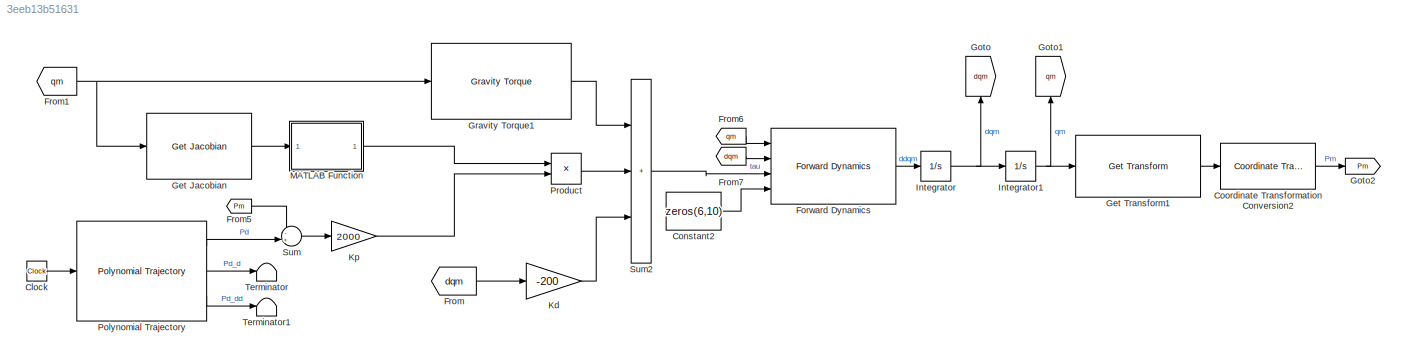
MODEL slx_3eeb13b51631
KIND model
CONFIG AbsTol = auto
CONFIG EnableMultiTasking = off
CONFIG FixedStep = auto
CONFIG MaxStep = auto
CONFIG MinStep = auto
CONFIG RelTol = 1e-3
CONFIG SampleTimeConstraint = Unconstrained
CONFIG SolverName = VariableStepAuto
CONFIG StartTime = 0.0
CONFIG StopTime = 20
BLOCK [Clock] Clock
BLOCK [Constant] Constant2
  Value = zeros(6,10)
BLOCK [Reference] Coordinate Transformation Conversion2  REF=robotcorelib/Coordinate Transformation Conversion
  Ports = [1, 1]
  SourceBlock = robotcorelib/Coordinate Transformation Conversion
  SourceProductBaseCode = NV,RO,RR,UV
  SourceType = robotics.slcore.internal.block.CoordinateTransformationConversion
BLOCK [Reference] Forward Dynamics  REF=robotmaniplib/Forward Dynamics
  Ports = [4, 1]
  SourceBlock = robotmaniplib/Forward Dynamics
  SourceProductBaseCode = RO
  SourceType = Forward Dynamics
BLOCK [From] From
  GotoTag = dqm
BLOCK [From] From1
  GotoTag = qm
BLOCK [From] From5
  GotoTag = Pm
BLOCK [From] From6
  GotoTag = qm
BLOCK [From] From7
  GotoTag = dqm
BLOCK [Reference] Get Jacobian  REF=robotmaniplib/Get Jacobian
  Ports = [1, 1]
  SourceBlock = robotmaniplib/Get Jacobian
  SourceProductBaseCode = RO
  SourceType = Get Jacobian
BLOCK [Reference] Get Transform1  REF=robotmaniplib/Get Transform
  Ports = [1, 1]
  SourceBlock = robotmaniplib/Get Transform
  SourceProductBaseCode = RO
  SourceType = Get Transform
BLOCK [Goto] Goto
  GotoTag = dqm
  NameLocation = right
BLOCK [Goto] Goto1
  GotoTag = qm
  NameLocation = right
BLOCK [Goto] Goto2
  GotoTag = Pm
BLOCK [Reference] Gravity Torque1  REF=robotmaniplib/Gravity Torque
  Ports = [1, 1]
  SourceBlock = robotmaniplib/Gravity Torque
  SourceProductBaseCode = RO
  SourceType = Gravity Torque
BLOCK [Integrator] Integrator
  Ports = [1, 1]
BLOCK [Integrator] Integrator1
  Ports = [1, 1]
BLOCK [Gain] Kd
  Gain = -200
BLOCK [Gain] Kp
  Gain = 2000
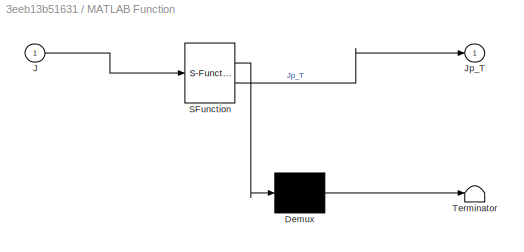
BLOCK [SubSystem] MATLAB Function
  ErrorFcn = Stateflow.Translate.translate
  PermitHierarchicalResolution = ExplicitOnly
  Ports = [1, 1]
  RequestExecContextInheritance = off
  SFBlockType = MATLAB Function
  TreatAsAtomicUnit = on
BLOCK [Demux] MATLAB Function/ Demux 
  Outputs = 1
  Ports = [1, 1]
BLOCK [S-Function] MATLAB Function/ SFunction 
  EnableBusSupport = on
  FunctionName = sf_sfun
  PortCounts = [1 2]
  Ports = [1, 2]
  SFcnIsStateOwnerBlock = off
  SFunctionDeploymentMode = off
  Tag = Stateflow S-Function 2
BLOCK [Terminator] MATLAB Function/ Terminator 
BLOCK [Inport] MATLAB Function/J
BLOCK [Outport] MATLAB Function/Jp_T
BLOCK [Reference] Polynomial Trajectory  REF=robotcorelib/Polynomial Trajectory
  Ports = [1, 3]
  SourceBlock = robotcorelib/Polynomial Trajectory
  SourceProductBaseCode = NV,RO,RR,UV
  SourceType = robotics.slcore.internal.block.PolyTrajSys
BLOCK [Product] Product
  Multiplication = Matrix(*)
  Ports = [2, 1]
BLOCK [Sum] Sum
  Inputs = -+|
  Ports = [2, 1]
BLOCK [Sum] Sum2
  IconShape = rectangular
  Inputs = +++
  Ports = [3, 1]
BLOCK [Terminator] Terminator
BLOCK [Terminator] Terminator1
LINE Clock:1 -> Polynomial Trajectory:1
LINE Constant2:1 -> Forward Dynamics:4
LINE Coordinate Transformation Conversion2:1 -> Goto2:1
LINE Forward Dynamics:1 -> Integrator:1
NET From1:1 -> Get Jacobian:1, Gravity Torque1:1
LINE From5:1 -> Sum:1
LINE From6:1 -> Forward Dynamics:1
LINE From7:1 -> Forward Dynamics:2
LINE From:1 -> Kd:1
LINE Get Jacobian:1 -> MATLAB Function:1
LINE Get Transform1:1 -> Coordinate Transformation Conversion2:1
LINE Gravity Torque1:1 -> Sum2:1
NET Integrator1:1 -> Get Transform1:1, Goto1:1
NET Integrator:1 -> Goto:1, Integrator1:1
LINE Kd:1 -> Sum2:3
LINE Kp:1 -> Product:2
LINE MATLAB Function:1 -> Product:1
LINE Polynomial Trajectory:1 -> Sum:2
LINE Polynomial Trajectory:2 -> Terminator:1
LINE Polynomial Trajectory:3 -> Terminator1:1
LINE Product:1 -> Sum2:2
LINE Sum2:1 -> Forward Dynamics:3
LINE Sum:1 -> Kp:1
note: NET lines group one-source signal fan-out (src -> all destinations, sorted); 1:1 wires keep LINE
CHART MATLAB Function states=1 transitions=1
  STATE_LABEL 'eML_blk_kernel()'
  STATE_LABEL "SCRIPT:\nfunction Jp_T = fcn(J)\n\nJp_T = J(4:6,:)';\n\nend\n"
CHART  states=0 transitions=0
